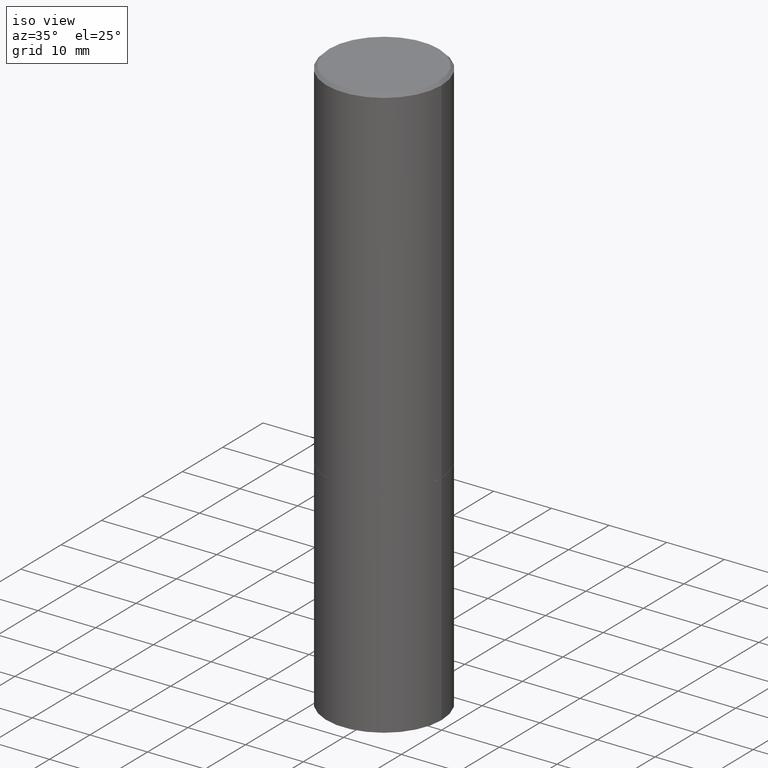
[diagram: clean part render]
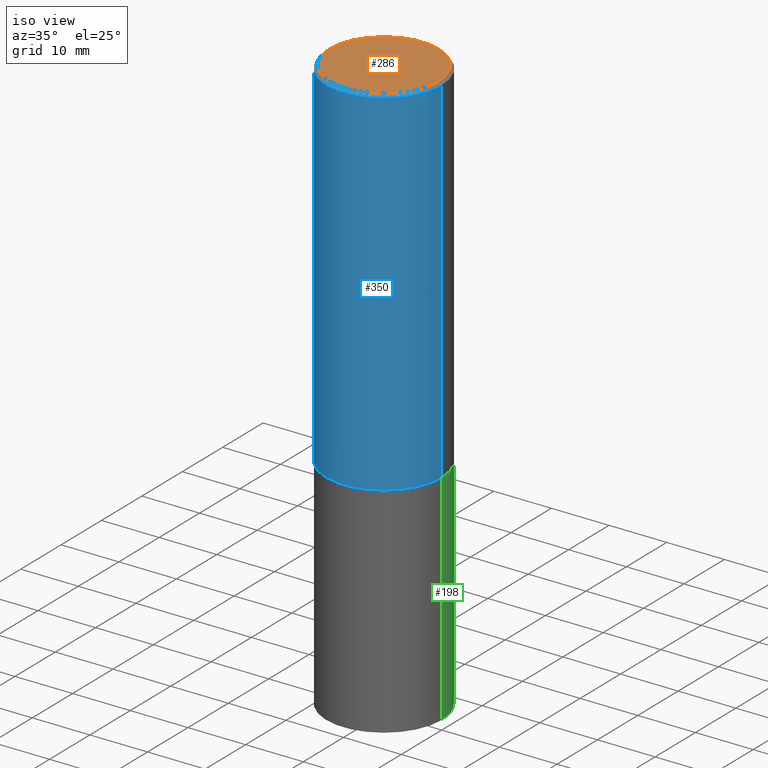
[diagram: same view with three faces highlighted in distinct colors, each labeled with its STEP entity id]
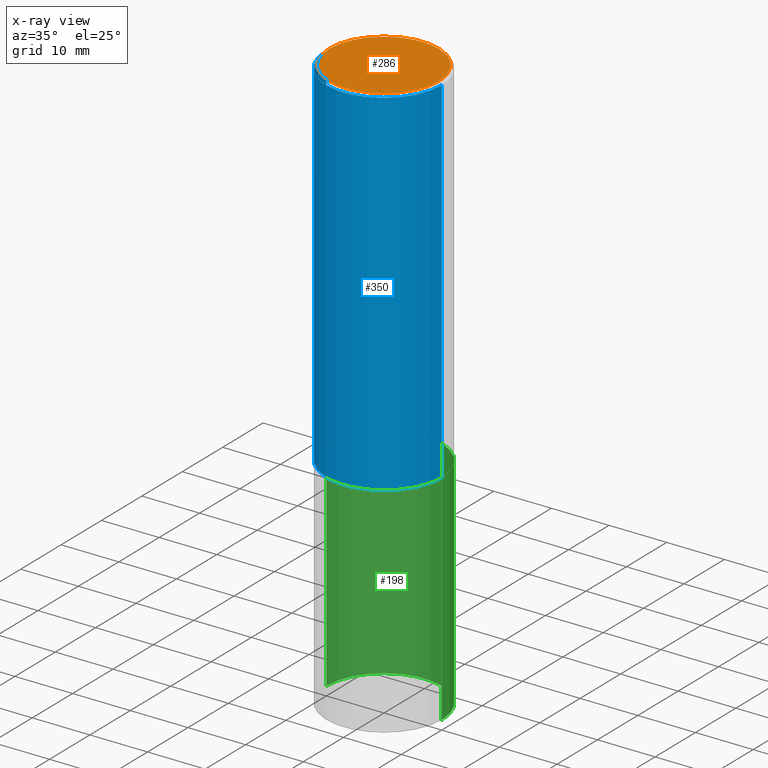
[diagram: x-ray of the same camera — body ghosted, the three highlighted faces saturated]
A machine part, iso view with three faces highlighted in distinct colors.
The next image is the same camera in x-ray (body ghosted, the three faces saturated) — at least one of them is partly hidden behind the body in this view.
Their STEP definitions:

[orange] entity #286 — the highlighted planar face has unit normal (0, -0, -1).
#7 = EDGE_LOOP ( 'NONE', ( #260, #328 ) ) ;
#9 = VERTEX_POINT ( 'NONE', #332 ) ;
#23 = AXIS2_PLACEMENT_3D ( 'NONE', #356, #138, #107 ) ;
#31 = FACE_OUTER_BOUND ( 'NONE', #7, .T. ) ;
#42 = EDGE_CURVE ( 'NONE', #9, #217, #86, .T. ) ;
#47 = AXIS2_PLACEMENT_3D ( 'NONE', #364, #212, #52 ) ;
#51 = CARTESIAN_POINT ( 'NONE',  ( 0.3736999999999996991, -2.667287895133366387E-15, 4.268512490118863228E-18 ) ) ;
#52 = DIRECTION ( 'NONE',  ( 1.000000000000000000, -6.982962677686266711E-15, 4.876212485538979042E-29 ) ) ;
#53 = CARTESIAN_POINT ( 'NONE',  ( 2.609533152651355437E-15, 0.3736999999999996991, -1.302632320080632238E-15 ) ) ;
#59 = EDGE_CURVE ( 'NONE', #217, #9, #61, .T. ) ;
#61 = CIRCLE ( 'NONE', #23, 0.3736999999999996991 ) ;
#86 = CIRCLE ( 'NONE', #47, 0.3736999999999996991 ) ;
#107 = DIRECTION ( 'NONE',  ( 1.000000000000000000, -6.982962677686266711E-15, 4.876212485538979042E-29 ) ) ;
#138 = DIRECTION ( 'NONE',  ( -2.445468806185136597E-29, 3.491481338843145583E-15, 1.000000000000000000 ) ) ;
#147 = AXIS2_PLACEMENT_3D ( 'NONE', #53, #165, #331 ) ;
#165 = DIRECTION ( 'NONE',  ( 2.438088387897960049E-29, -3.491481338843145188E-15, -1.000000000000000000 ) ) ;
#212 = DIRECTION ( 'NONE',  ( -2.445468806185136597E-29, 3.491481338843145583E-15, 1.000000000000000000 ) ) ;
#217 = VERTEX_POINT ( 'NONE', #51 ) ;
#260 = ORIENTED_EDGE ( 'NONE', *, *, #42, .T. ) ;
#286 = ADVANCED_FACE ( 'NONE', ( #31 ), #302, .F. ) ;
#302 = PLANE ( 'NONE',  #147 ) ;
#328 = ORIENTED_EDGE ( 'NONE', *, *, #59, .T. ) ;
#331 = DIRECTION ( 'NONE',  ( -1.000000000000000000, 6.982962677686265922E-15, -4.876176775795935793E-29 ) ) ;
#332 = CARTESIAN_POINT ( 'NONE',  ( -0.3736999999999996991, 2.644447966039787086E-15, 4.268512490082039448E-18 ) ) ;
#356 = CARTESIAN_POINT ( 'NONE',  ( -1.043851414335219820E-46, 1.490343170380447200E-32, 4.268512490100411279E-18 ) ) ;
#364 = CARTESIAN_POINT ( 'NONE',  ( -1.043851414335219820E-46, 1.490343170380447200E-32, 4.268512490100411279E-18 ) ) ;

[blue] entity #350 — the highlighted cylindrical surface (partial cylindrical patch) has radius 10 mm, axis along (-0, 0, 1).
#12 = EDGE_CURVE ( 'NONE', #244, #27, #299, .T. ) ;
#13 = AXIS2_PLACEMENT_3D ( 'NONE', #184, #133, #298 ) ;
#26 = CARTESIAN_POINT ( 'NONE',  ( 0.000000000000000000, 0.000000000000000000, 0.000000000000000000 ) ) ;
#27 = VERTEX_POINT ( 'NONE', #58 ) ;
#35 = VECTOR ( 'NONE', #214, 39.37007874015748143 ) ;
#40 = CARTESIAN_POINT ( 'NONE',  ( 5.966699340211115678E-29, -8.518865318643391536E-15, -2.439900000000000180 ) ) ;
#58 = CARTESIAN_POINT ( 'NONE',  ( -0.3936999999999997724, 2.679362779428217946E-15, -0.02000000000000009062 ) ) ;
#60 = FACE_OUTER_BOUND ( 'NONE', #83, .T. ) ;
#83 = EDGE_LOOP ( 'NONE', ( #125, #247, #306, #272 ) ) ;
#100 = AXIS2_PLACEMENT_3D ( 'NONE', #26, #139, #243 ) ;
#106 = CARTESIAN_POINT ( 'NONE',  ( 0.3936999999999998834, -2.749192406205082428E-15, 1.919750796630859331E-29 ) ) ;
#111 = EDGE_CURVE ( 'NONE', #262, #278, #209, .T. ) ;
#124 = DIRECTION ( 'NONE',  ( 1.000000000000000000, -6.982962677686265133E-15, 0.000000000000000000 ) ) ;
#125 = ORIENTED_EDGE ( 'NONE', *, *, #12, .F. ) ;
#127 = AXIS2_PLACEMENT_3D ( 'NONE', #40, #290, #124 ) ;
#133 = DIRECTION ( 'NONE',  ( -2.445468806185136597E-29, 3.491481338843145583E-15, 1.000000000000000000 ) ) ;
#134 = DIRECTION ( 'NONE',  ( -2.445468806185136877E-29, 3.491481338843145188E-15, 1.000000000000000000 ) ) ;
#139 = DIRECTION ( 'NONE',  ( -2.445468806185136597E-29, 3.491481338843145583E-15, 1.000000000000000000 ) ) ;
#143 = CIRCLE ( 'NONE', #13, 0.3936999999999997724 ) ;
#169 = CARTESIAN_POINT ( 'NONE',  ( 0.3936999999999997724, -2.770807688499513762E-15, -0.02000000000000009062 ) ) ;
#184 = CARTESIAN_POINT ( 'NONE',  ( 4.890937612370295054E-31, -6.982962677686322424E-17, -0.02000000000000009062 ) ) ;
#193 = EDGE_CURVE ( 'NONE', #244, #262, #283, .T. ) ;
#207 = EDGE_CURVE ( 'NONE', #27, #278, #143, .T. ) ;
#209 = LINE ( 'NONE', #106, #35 ) ;
#214 = DIRECTION ( 'NONE',  ( -2.445468806185136877E-29, 3.491481338843145188E-15, 1.000000000000000000 ) ) ;
#243 = DIRECTION ( 'NONE',  ( 1.000000000000000000, -6.982962677686266711E-15, 4.876176775795935793E-29 ) ) ;
#244 = VERTEX_POINT ( 'NONE', #320 ) ;
#247 = ORIENTED_EDGE ( 'NONE', *, *, #193, .T. ) ;
#248 = VECTOR ( 'NONE', #134, 39.37007874015748143 ) ;
#262 = VERTEX_POINT ( 'NONE', #264 ) ;
#264 = CARTESIAN_POINT ( 'NONE',  ( 0.3937000000000000499, -1.126805772484847318E-14, -2.439900000000000180 ) ) ;
#272 = ORIENTED_EDGE ( 'NONE', *, *, #207, .F. ) ;
#278 = VERTEX_POINT ( 'NONE', #169 ) ;
#280 = CYLINDRICAL_SURFACE ( 'NONE', #100, 0.3936999999999998834 ) ;
#283 = CIRCLE ( 'NONE', #127, 0.3937000000000000499 ) ;
#290 = DIRECTION ( 'NONE',  ( -2.445468806185136597E-29, 3.491481338843145583E-15, 1.000000000000000000 ) ) ;
#298 = DIRECTION ( 'NONE',  ( 1.000000000000000000, -6.982962677686266711E-15, 0.000000000000000000 ) ) ;
#299 = LINE ( 'NONE', #300, #248 ) ;
#300 = CARTESIAN_POINT ( 'NONE',  ( -0.3936999999999998834, 2.797406750687513603E-15, -1.936584745033355895E-29 ) ) ;
#306 = ORIENTED_EDGE ( 'NONE', *, *, #111, .T. ) ;
#320 = CARTESIAN_POINT ( 'NONE',  ( -0.3937000000000001054, -1.496940722022610659E-15, -2.439900000000000180 ) ) ;
#350 = ADVANCED_FACE ( 'NONE', ( #60 ), #280, .T. ) ;

[green] entity #198 — the highlighted cylindrical surface (partial cylindrical patch) has radius 10 mm, axis along (-0, 0, 1).
#18 = DIRECTION ( 'NONE',  ( -2.445468806185136597E-29, 3.491481338843145583E-15, 1.000000000000000000 ) ) ;
#20 = EDGE_CURVE ( 'NONE', #44, #109, #135, .T. ) ;
#21 = CARTESIAN_POINT ( 'NONE',  ( 9.627810689950883669E-29, -1.374596203102546341E-14, -3.937000000000000277 ) ) ;
#32 = AXIS2_PLACEMENT_3D ( 'NONE', #75, #236, #347 ) ;
#44 = VERTEX_POINT ( 'NONE', #240 ) ;
#49 = CYLINDRICAL_SURFACE ( 'NONE', #32, 0.3937000000000000499 ) ;
#55 = AXIS2_PLACEMENT_3D ( 'NONE', #21, #18, #252 ) ;
#75 = CARTESIAN_POINT ( 'NONE',  ( 0.000000000000000000, 0.000000000000000000, 0.000000000000000000 ) ) ;
#76 = DIRECTION ( 'NONE',  ( -2.445468806185136597E-29, 3.491481338843145583E-15, 1.000000000000000000 ) ) ;
#101 = CARTESIAN_POINT ( 'NONE',  ( -0.3937000000000000499, 2.797406750687514786E-15, -1.936584745033356735E-29 ) ) ;
#109 = VERTEX_POINT ( 'NONE', #352 ) ;
#119 = EDGE_CURVE ( 'NONE', #142, #44, #160, .T. ) ;
#122 = VECTOR ( 'NONE', #210, 39.37007874015748143 ) ;
#123 = ORIENTED_EDGE ( 'NONE', *, *, #276, .T. ) ;
#126 = CARTESIAN_POINT ( 'NONE',  ( -0.3937000000000000499, -8.336752664816334981E-15, -3.937000000000000277 ) ) ;
#130 = VERTEX_POINT ( 'NONE', #126 ) ;
#135 = CIRCLE ( 'NONE', #362, 0.3937000000000000499 ) ;
#140 = ORIENTED_EDGE ( 'NONE', *, *, #233, .T. ) ;
#142 = VERTEX_POINT ( 'NONE', #237 ) ;
#158 = DIRECTION ( 'NONE',  ( -2.445468806185136877E-29, 3.491481338843145188E-15, 1.000000000000000000 ) ) ;
#160 = LINE ( 'NONE', #318, #122 ) ;
#182 = VECTOR ( 'NONE', #158, 39.37007874015748143 ) ;
#183 = EDGE_LOOP ( 'NONE', ( #123, #140, #319, #358 ) ) ;
#191 = CARTESIAN_POINT ( 'NONE',  ( 5.969144809017300159E-29, -8.522356799982234543E-15, -2.440900000000000070 ) ) ;
#198 = ADVANCED_FACE ( 'NONE', ( #232 ), #49, .T. ) ;
#204 = CIRCLE ( 'NONE', #55, 0.3937000000000000499 ) ;
#210 = DIRECTION ( 'NONE',  ( -2.445468806185136877E-29, 3.491481338843145188E-15, 1.000000000000000000 ) ) ;
#232 = FACE_OUTER_BOUND ( 'NONE', #183, .T. ) ;
#233 = EDGE_CURVE ( 'NONE', #130, #109, #235, .T. ) ;
#235 = LINE ( 'NONE', #101, #182 ) ;
#236 = DIRECTION ( 'NONE',  ( -2.445468806185136597E-29, 3.491481338843145583E-15, 1.000000000000000000 ) ) ;
#237 = CARTESIAN_POINT ( 'NONE',  ( 0.3937000000000000499, -1.649515443723054663E-14, -3.937000000000000277 ) ) ;
#240 = CARTESIAN_POINT ( 'NONE',  ( 0.3937000000000000499, -1.127154920618731776E-14, -2.440900000000000070 ) ) ;
#252 = DIRECTION ( 'NONE',  ( 1.000000000000000000, -6.982962677686267499E-15, 0.000000000000000000 ) ) ;
#269 = DIRECTION ( 'NONE',  ( 1.000000000000000000, -6.982962677686267499E-15, 0.000000000000000000 ) ) ;
#276 = EDGE_CURVE ( 'NONE', #142, #130, #204, .T. ) ;
#318 = CARTESIAN_POINT ( 'NONE',  ( 0.3937000000000000499, -2.749192406205083217E-15, 1.919750796630860172E-29 ) ) ;
#319 = ORIENTED_EDGE ( 'NONE', *, *, #20, .F. ) ;
#347 = DIRECTION ( 'NONE',  ( 1.000000000000000000, -6.982962677686265922E-15, 4.876176775795935793E-29 ) ) ;
#352 = CARTESIAN_POINT ( 'NONE',  ( -0.3937000000000000499, -8.336752664816334981E-15, -2.440900000000000070 ) ) ;
#358 = ORIENTED_EDGE ( 'NONE', *, *, #119, .F. ) ;
#362 = AXIS2_PLACEMENT_3D ( 'NONE', #191, #76, #269 ) ;